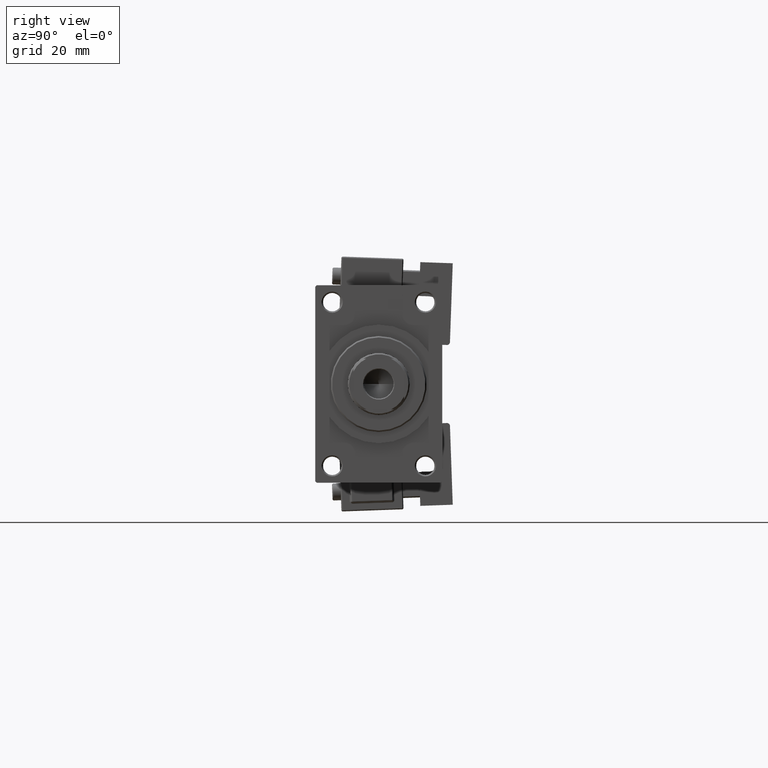
[diagram: clean part render]
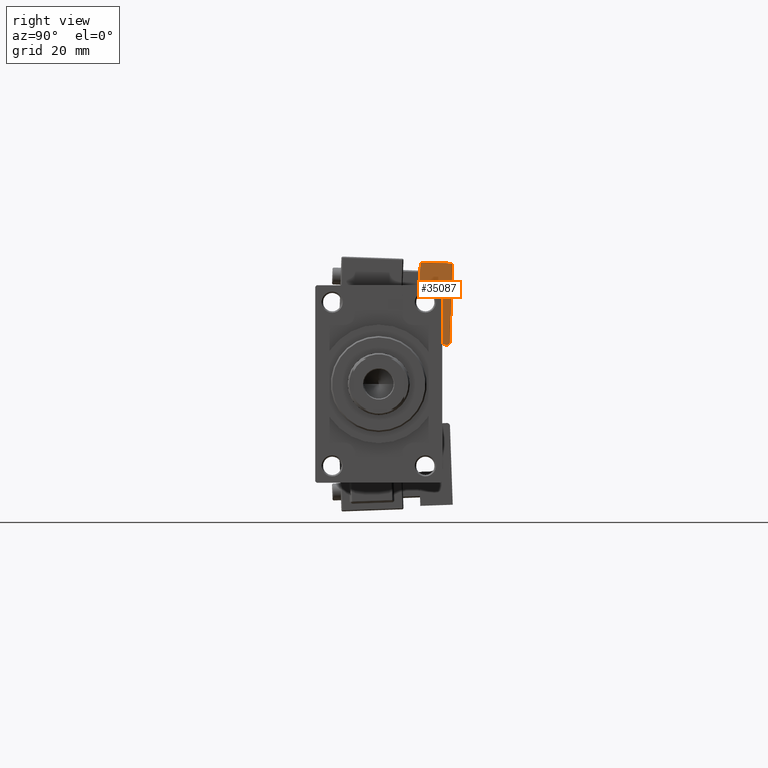
[diagram: same view with one face highlighted and labeled with its STEP entity id]
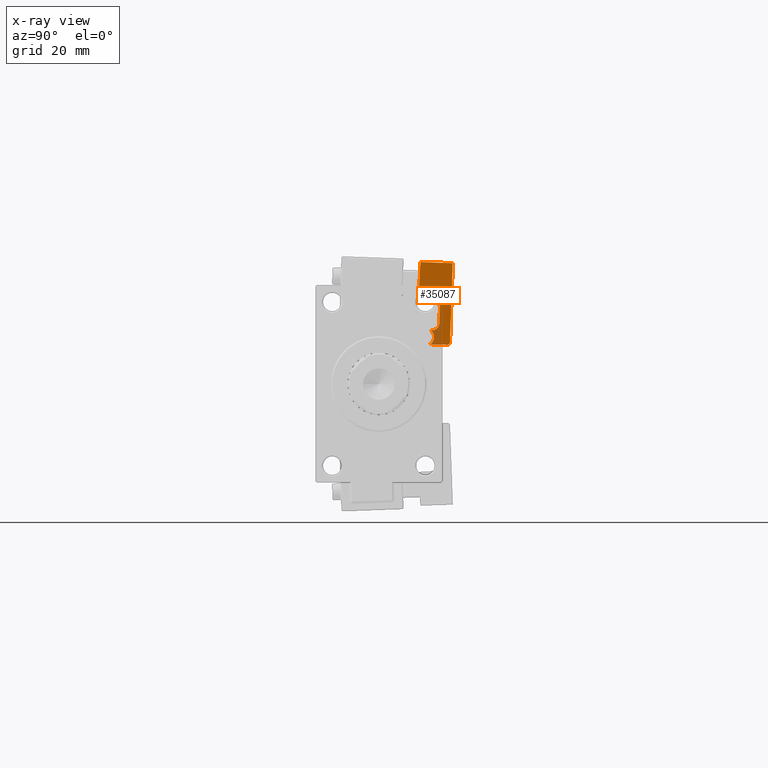
[diagram: x-ray of the same camera — body ghosted, the highlighted face saturated]
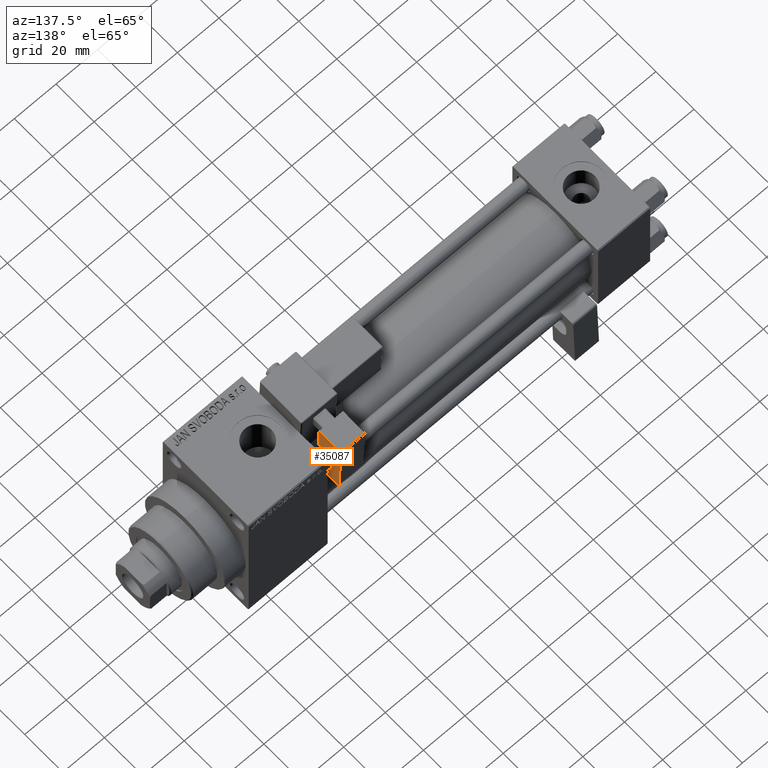
[diagram: same view with one face highlighted and labeled with its STEP entity id]
A machine part, right view. The second image highlights one B-rep face of the part: STEP entity #35087.
The next image is the same camera in x-ray: the body ghosted, the highlighted face saturated — about 28% of this face is hidden behind the body in this view.
A second angle (auxiliary view) of the same face is appended — the face is thin or edge-on in the first view.
In plain terms, the highlighted planar face has unit normal (-1, 0, -0).
Its self-contained STEP definition (entity closure, byte-faithful):
#333 = DIRECTION ( 'NONE',  ( -2.168404344971008868E-16, 1.000000000000000000, 0.000000000000000000 ) ) ;
#601 = LINE ( 'NONE', #38841, #12213 ) ;
#622 = CARTESIAN_POINT ( 'NONE',  ( -5.750000000000000000, 5.750000000000000000, 0.000000000000000000 ) ) ;
#780 = ORIENTED_EDGE ( 'NONE', *, *, #21326, .F. ) ;
#846 = DIRECTION ( 'NONE',  ( 0.000000000000000000, -3.071906155375595568E-16, -1.000000000000000000 ) ) ;
#1264 = ORIENTED_EDGE ( 'NONE', *, *, #25386, .F. ) ;
#1293 = EDGE_CURVE ( 'NONE', #47042, #14538, #27328, .T. ) ;
#2211 = EDGE_CURVE ( 'NONE', #2931, #36562, #601, .T. ) ;
#2786 = VECTOR ( 'NONE', #18883, 1000.000000000000000 ) ;
#2931 = VERTEX_POINT ( 'NONE', #13154 ) ;
#4382 = LINE ( 'NONE', #622, #2786 ) ;
#4415 = CARTESIAN_POINT ( 'NONE',  ( -5.750000000000000000, 4.750000000000000888, 29.00000000000000000 ) ) ;
#5299 = EDGE_CURVE ( 'NONE', #38939, #43025, #4382, .T. ) ;
#5795 = CIRCLE ( 'NONE', #33732, 4.000000000000000000 ) ;
#6418 = ORIENTED_EDGE ( 'NONE', *, *, #8299, .T. ) ;
#6955 = CARTESIAN_POINT ( 'NONE',  ( -5.749999999999998224, -5.750000000000000000, 0.000000000000000000 ) ) ;
#7855 = VECTOR ( 'NONE', #9357, 1000.000000000000000 ) ;
#8299 = EDGE_CURVE ( 'NONE', #23803, #29784, #28058, .T. ) ;
#8600 = CARTESIAN_POINT ( 'NONE',  ( -5.750000000000000000, 5.750000000000000000, 12.00000000000000000 ) ) ;
#8824 = CARTESIAN_POINT ( 'NONE',  ( -5.750000000000000000, -1.249999999999999334, 29.00000000000000000 ) ) ;
#8849 = DIRECTION ( 'NONE',  ( -0.000000000000000000, -0.000000000000000000, -1.000000000000000000 ) ) ;
#9034 = VERTEX_POINT ( 'NONE', #43733 ) ;
#9107 = LINE ( 'NONE', #24333, #47567 ) ;
#9357 = DIRECTION ( 'NONE',  ( 0.000000000000000000, 1.000000000000000000, 0.000000000000000000 ) ) ;
#9978 = EDGE_CURVE ( 'NONE', #2931, #48526, #41586, .T. ) ;
#10208 = ORIENTED_EDGE ( 'NONE', *, *, #5299, .T. ) ;
#10310 = PLANE ( 'NONE',  #17372 ) ;
#10412 = DIRECTION ( 'NONE',  ( 1.000000000000000000, 1.508455196501571183E-16, -0.000000000000000000 ) ) ;
#10465 = ORIENTED_EDGE ( 'NONE', *, *, #9978, .T. ) ;
#10535 = VERTEX_POINT ( 'NONE', #8824 ) ;
#11581 = DIRECTION ( 'NONE',  ( 1.000000000000000000, 1.508455196501571183E-16, -0.000000000000000000 ) ) ;
#11766 = ORIENTED_EDGE ( 'NONE', *, *, #2211, .F. ) ;
#12213 = VECTOR ( 'NONE', #846, 1000.000000000000000 ) ;
#13154 = CARTESIAN_POINT ( 'NONE',  ( -5.750000000000000000, 1.749999999999999112, 21.50000000000000000 ) ) ;
#14110 = EDGE_LOOP ( 'NONE', ( #26514, #38336, #38189, #10208, #1264, #780, #36794, #11766, #10465, #44735, #36369, #6418, #47957 ) ) ;
#14538 = VERTEX_POINT ( 'NONE', #33947 ) ;
#14747 = EDGE_CURVE ( 'NONE', #31738, #36562, #5795, .T. ) ;
#14931 = LINE ( 'NONE', #18424, #22491 ) ;
#15638 = VECTOR ( 'NONE', #8849, 1000.000000000000000 ) ;
#16098 = LINE ( 'NONE', #8600, #15638 ) ;
#17372 = AXIS2_PLACEMENT_3D ( 'NONE', #25541, #40808, #21807 ) ;
#17429 = CARTESIAN_POINT ( 'NONE',  ( -5.749999999999998224, -2.936149805543990521, 26.50000000000000000 ) ) ;
#17579 = LINE ( 'NONE', #21565, #7855 ) ;
#17927 = LINE ( 'NONE', #37672, #31950 ) ;
#18424 = CARTESIAN_POINT ( 'NONE',  ( -5.750000000000000000, 5.750000000000000000, 29.00000000000000000 ) ) ;
#18883 = DIRECTION ( 'NONE',  ( 1.508455196501571429E-16, -1.000000000000000000, 0.000000000000000000 ) ) ;
#19612 = CARTESIAN_POINT ( 'NONE',  ( -5.750000000000000000, 1.749999999999997558, 16.00000000000000000 ) ) ;
#21326 = EDGE_CURVE ( 'NONE', #31738, #9034, #28037, .T. ) ;
#21565 = CARTESIAN_POINT ( 'NONE',  ( -5.750000000000000000, -1.249999999999999334, 24.00000000000000000 ) ) ;
#21807 = DIRECTION ( 'NONE',  ( -1.508455196501571183E-16, 1.000000000000000000, 0.000000000000000000 ) ) ;
#22491 = VECTOR ( 'NONE', #48665, 1000.000000000000000 ) ;
#23803 = VERTEX_POINT ( 'NONE', #48465 ) ;
#24333 = CARTESIAN_POINT ( 'NONE',  ( -5.749999999999998224, -5.750000000000000000, 12.00000000000000000 ) ) ;
#25062 = CARTESIAN_POINT ( 'NONE',  ( -5.750000000000000000, -0.7500000000000007772, 24.00000000000000000 ) ) ;
#25329 = EDGE_CURVE ( 'NONE', #14538, #38939, #16098, .T. ) ;
#25386 = EDGE_CURVE ( 'NONE', #9034, #43025, #9107, .T. ) ;
#25541 = CARTESIAN_POINT ( 'NONE',  ( -5.750000000000000000, 5.750000000000000000, 12.00000000000000000 ) ) ;
#25644 = DIRECTION ( 'NONE',  ( -2.891205793294678326E-16, 1.000000000000000000, 0.000000000000000000 ) ) ;
#26255 = CARTESIAN_POINT ( 'NONE',  ( -5.749999999999998224, -0.7500000000000007772, 21.50000000000000000 ) ) ;
#26514 = ORIENTED_EDGE ( 'NONE', *, *, #47890, .F. ) ;
#27055 = CARTESIAN_POINT ( 'NONE',  ( -5.749999999999999112, -2.250000000000002665, 16.00000000000000000 ) ) ;
#27268 = AXIS2_PLACEMENT_3D ( 'NONE', #17429, #10412, #25644 ) ;
#27328 = CIRCLE ( 'NONE', #43305, 1.000000000000000000 ) ;
#27842 = LINE ( 'NONE', #35591, #27986 ) ;
#27986 = VECTOR ( 'NONE', #43108, 1000.000000000000114 ) ;
#28037 = LINE ( 'NONE', #39304, #30755 ) ;
#28058 = CIRCLE ( 'NONE', #27268, 3.000000000000000000 ) ;
#28840 = CARTESIAN_POINT ( 'NONE',  ( -5.750000000000000000, -1.249999999999999334, 24.00000000000000000 ) ) ;
#29096 = VERTEX_POINT ( 'NONE', #28840 ) ;
#29495 = CARTESIAN_POINT ( 'NONE',  ( -5.749999999999999112, -2.250000000000003553, 12.00000000000000000 ) ) ;
#29664 = DIRECTION ( 'NONE',  ( 0.000000000000000000, -0.7682212795973755171, -0.6401843996644802637 ) ) ;
#29784 = VERTEX_POINT ( 'NONE', #38636 ) ;
#30755 = VECTOR ( 'NONE', #31788, 1000.000000000000000 ) ;
#31368 = EDGE_CURVE ( 'NONE', #29096, #48526, #17579, .T. ) ;
#31738 = VERTEX_POINT ( 'NONE', #29495 ) ;
#31788 = DIRECTION ( 'NONE',  ( 1.508455196501571429E-16, -1.000000000000000000, 0.000000000000000000 ) ) ;
#31950 = VECTOR ( 'NONE', #29664, 1000.000000000000114 ) ;
#33732 = AXIS2_PLACEMENT_3D ( 'NONE', #27055, #11581, #333 ) ;
#33947 = CARTESIAN_POINT ( 'NONE',  ( -5.750000000000000000, 5.750000000000000000, 28.00000000000000000 ) ) ;
#34279 = DIRECTION ( 'NONE',  ( -1.000000000000000000, -1.508455196501571183E-16, 0.000000000000000000 ) ) ;
#35087 = ADVANCED_FACE ( 'NONE', ( #36067 ), #10310, .F. ) ;
#35591 = CARTESIAN_POINT ( 'NONE',  ( -5.750000000000000000, -1.249999999999999334, 29.00000000000000000 ) ) ;
#36067 = FACE_OUTER_BOUND ( 'NONE', #14110, .T. ) ;
#36369 = ORIENTED_EDGE ( 'NONE', *, *, #44017, .F. ) ;
#36562 = VERTEX_POINT ( 'NONE', #19612 ) ;
#36794 = ORIENTED_EDGE ( 'NONE', *, *, #14747, .T. ) ;
#37672 = CARTESIAN_POINT ( 'NONE',  ( -5.750000000000000000, 1.749999999999999778, 26.50000000000000355 ) ) ;
#38189 = ORIENTED_EDGE ( 'NONE', *, *, #25329, .T. ) ;
#38336 = ORIENTED_EDGE ( 'NONE', *, *, #1293, .T. ) ;
#38636 = CARTESIAN_POINT ( 'NONE',  ( -5.750000000000000000, -1.015596606550550618, 28.80466383879212700 ) ) ;
#38841 = CARTESIAN_POINT ( 'NONE',  ( -5.750000000000000000, 1.750000000000000000, 24.00000000000000000 ) ) ;
#38939 = VERTEX_POINT ( 'NONE', #46659 ) ;
#39304 = CARTESIAN_POINT ( 'NONE',  ( -5.750000000000000000, 5.750000000000000000, 12.00000000000000000 ) ) ;
#39599 = DIRECTION ( 'NONE',  ( -0.000000000000000000, -0.000000000000000000, -1.000000000000000000 ) ) ;
#40808 = DIRECTION ( 'NONE',  ( 1.000000000000000000, 1.508455196501571183E-16, -0.000000000000000000 ) ) ;
#41273 = DIRECTION ( 'NONE',  ( 1.000000000000000000, 1.508455196501571183E-16, -0.000000000000000000 ) ) ;
#41586 = CIRCLE ( 'NONE', #47956, 2.500000000000000000 ) ;
#42030 = DIRECTION ( 'NONE',  ( 0.000000000000000000, 1.000000000000000000, 0.000000000000000000 ) ) ;
#43025 = VERTEX_POINT ( 'NONE', #6955 ) ;
#43108 = DIRECTION ( 'NONE',  ( 0.000000000000000000, 0.7682212795973759611, -0.6401843996644797086 ) ) ;
#43305 = AXIS2_PLACEMENT_3D ( 'NONE', #45530, #34279, #42030 ) ;
#43733 = CARTESIAN_POINT ( 'NONE',  ( -5.749999999999998224, -5.750000000000000000, 12.00000000000000000 ) ) ;
#44017 = EDGE_CURVE ( 'NONE', #23803, #29096, #17927, .T. ) ;
#44735 = ORIENTED_EDGE ( 'NONE', *, *, #31368, .F. ) ;
#45478 = EDGE_CURVE ( 'NONE', #10535, #29784, #27842, .T. ) ;
#45530 = CARTESIAN_POINT ( 'NONE',  ( -5.750000000000000000, 4.750000000000000000, 28.00000000000000000 ) ) ;
#46659 = CARTESIAN_POINT ( 'NONE',  ( -5.750000000000000000, 5.750000000000000000, 0.000000000000000000 ) ) ;
#47042 = VERTEX_POINT ( 'NONE', #4415 ) ;
#47567 = VECTOR ( 'NONE', #39599, 1000.000000000000000 ) ;
#47890 = EDGE_CURVE ( 'NONE', #47042, #10535, #14931, .T. ) ;
#47956 = AXIS2_PLACEMENT_3D ( 'NONE', #26255, #41273, #49248 ) ;
#47957 = ORIENTED_EDGE ( 'NONE', *, *, #45478, .F. ) ;
#48465 = CARTESIAN_POINT ( 'NONE',  ( -5.750000000000000000, -1.015596606550550396, 24.19533616120787300 ) ) ;
#48526 = VERTEX_POINT ( 'NONE', #25062 ) ;
#48665 = DIRECTION ( 'NONE',  ( 0.000000000000000000, -1.000000000000000000, 0.000000000000000000 ) ) ;
#49248 = DIRECTION ( 'NONE',  ( 0.000000000000000000, 1.000000000000000000, 0.000000000000000000 ) ) ;